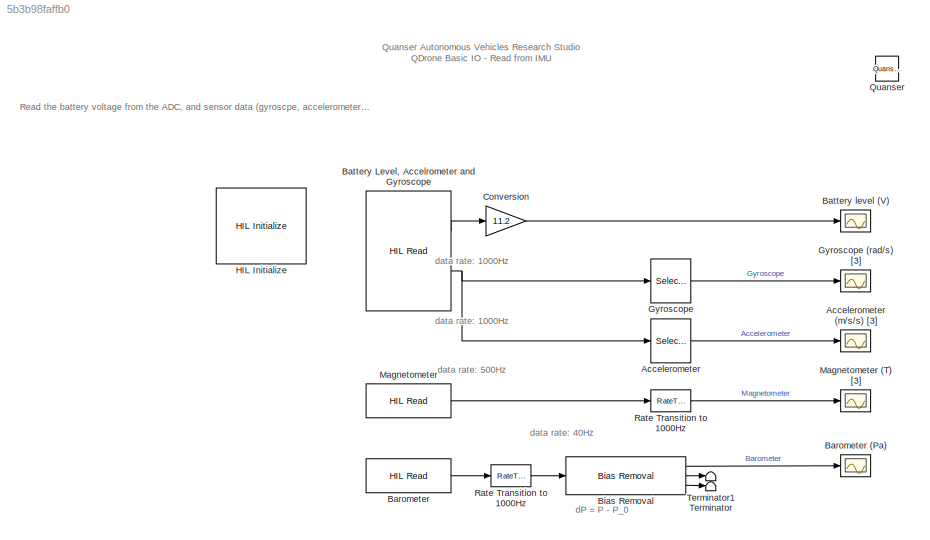
MODEL slx_5b3b98faffb0
KIND model
CONFIG AbsTol = auto
CONFIG EnableMultiTasking = on
CONFIG FixedStep = 0.001
CONFIG InitFcn = set_param(gcs, 'ZoomFactor','FitSystem')
CONFIG MaxStep = auto
CONFIG MinStep = auto
CONFIG RelTol = 1e-3
CONFIG SampleTimeConstraint = Unconstrained
CONFIG Solver = ode2
CONFIG SolverName = ode2
CONFIG StartTime = 0.0
CONFIG StopTime = inf
WORKSPACE source: MAT-file member
WORKSPACE target_system = 1
BLOCK [Selector] Accelerometer
  IndexOptions = Index vector (dialog)
  Indices = [4:6]
  InputPortWidth = 6
  OutputSizes = 1
  Ports = [1, 1]
BLOCK [Scope] Accelerometer (m//s//s) [3]
  Floating = off
  NumInputPorts = 1
  Ports = [1]
  ScopeSpecificationString = Simulink.scopes.TimeScopeBlockCfg('CurrentConfiguration', extmgr.ConfigurationSet(extmgr.Configuration('Core','General UI',true),extmgr.Configuration('Core','Source UI',true),extmgr.Configuration('Sources','WiredSimulink',true,'DataLoggingSaveFormat','Array','DataLoggingDecimation','1','DataLoggingDecimateData',true,'DataLoggingVariableName','ScopeData2'),extmgr.Configuration('Visuals','Time Domai...<+1670ch>
BLOCK [Reference] Barometer  REF=quarc_library/Data Acquisition/Generic/Immediate I//O/HIL Read
  AttributesFormatString = (%<object_name>)
  Ports = [0, 1]
  Priority = 1
  SourceBlock = quarc_library/Data Acquisition/Generic/Immediate I//O/HIL Read
  SourceProductName = The database <userpath>\AppData\Roaming\MathWorks\MATLAB\R2017a\slblocks_master.db is locked, or a table in the database is locked. (database is locked)
  SourceType = HIL Read
  UserDataPersistent = on
BLOCK [Scope] Barometer (Pa)
  Floating = off
  NumInputPorts = 1
  Ports = [1]
  ScopeSpecificationString = Simulink.scopes.TimeScopeBlockCfg('CurrentConfiguration', extmgr.ConfigurationSet(extmgr.Configuration('Core','General UI',true),extmgr.Configuration('Core','Source UI',true),extmgr.Configuration('Sources','WiredSimulink',true,'DataLoggingSaveFormat','Array','DataLoggingDecimation','1','DataLoggingDecimateData',true,'DataLoggingVariableName','ScopeData4'),extmgr.Configuration('Visuals','Time Domai...<+1686ch>
BLOCK [Reference] Battery Level, Accelrometer and Gyroscope  REF=quarc_library/Data Acquisition/Generic/Immediate I//O/HIL Read
  AttributesFormatString = (%<object_name>)
  Ports = [0, 2]
  Priority = 1
  SourceBlock = quarc_library/Data Acquisition/Generic/Immediate I//O/HIL Read
  SourceProductName = The database <userpath>\AppData\Roaming\MathWorks\MATLAB\R2017a\slblocks_master.db is locked, or a table in the database is locked. (database is locked)
  SourceType = HIL Read
  UserDataPersistent = on
BLOCK [Scope] Battery level  (V)
  Floating = off
  NumInputPorts = 1
  Ports = [1]
  ScopeSpecificationString = Simulink.scopes.TimeScopeBlockCfg('CurrentConfiguration', extmgr.ConfigurationSet(extmgr.Configuration('Core','General UI',true),extmgr.Configuration('Core','Source UI',true),extmgr.Configuration('Sources','WiredSimulink',true,'DataLoggingSaveFormat','Array','DataLoggingDecimation','1','DataLoggingDecimateData',true),extmgr.Configuration('Visuals','Time Domain',true,'SerializedDisplays',{struct('M...<+1609ch>
BLOCK [Reference] Bias Removal  REF=quarc_library/Discrete/Bias Removal
  Ports = [1, 3]
  SourceBlock = quarc_library/Discrete/Bias Removal
  SourceProductName = QUARC Targets
  SourceType = Bias Removal
BLOCK [Gain] Conversion
  Gain = 11.2
BLOCK [Selector] Gyroscope
  IndexOptions = Index vector (dialog)
  Indices = [1:3]
  InputPortWidth = 6
  OutputSizes = 1
  Ports = [1, 1]
BLOCK [Scope] Gyroscope (rad//s) [3]
  Floating = off
  NumInputPorts = 1
  Ports = [1]
  ScopeSpecificationString = Simulink.scopes.TimeScopeBlockCfg('CurrentConfiguration', extmgr.ConfigurationSet(extmgr.Configuration('Core','General UI',true),extmgr.Configuration('Core','Source UI',true),extmgr.Configuration('Sources','WiredSimulink',true,'DataLoggingSaveFormat','Array','DataLoggingDecimation','1','DataLoggingDecimateData',true,'DataLoggingVariableName','ScopeData1'),extmgr.Configuration('Visuals','Time Domai...<+1661ch>
BLOCK [Reference] HIL Initialize  REF=quarc_library/Data Acquisition/Generic/Configuration/HIL Initialize
  AttributesFormatString = %<object_name> (%<board_type>-%<board_number>)
  Ports = []
  SourceBlock = quarc_library/Data Acquisition/Generic/Configuration/HIL Initialize
  SourceProductName = The database <userpath>\AppData\Roaming\MathWorks\MATLAB\R2017a\slblocks_master.db is locked, or a table in the database is locked. (database is locked)
  SourceType = HIL Initialize
  UserDataPersistent = on
BLOCK [Reference] Magnetometer  REF=quarc_library/Data Acquisition/Generic/Immediate I//O/HIL Read
  AttributesFormatString = (%<object_name>)
  Ports = [0, 1]
  Priority = 1
  SourceBlock = quarc_library/Data Acquisition/Generic/Immediate I//O/HIL Read
  SourceProductName = The database <userpath>\AppData\Roaming\MathWorks\MATLAB\R2017a\slblocks_master.db is locked, or a table in the database is locked. (database is locked)
  SourceType = HIL Read
  UserDataPersistent = on
BLOCK [Scope] Magnetometer (T) [3]
  Floating = off
  NumInputPorts = 1
  Ports = [1]
  ScopeSpecificationString = Simulink.scopes.TimeScopeBlockCfg('CurrentConfiguration', extmgr.ConfigurationSet(extmgr.Configuration('Core','General UI',true),extmgr.Configuration('Core','Source UI',true),extmgr.Configuration('Sources','WiredSimulink',true,'DataLoggingSaveFormat','Array','DataLoggingDecimation','1','DataLoggingDecimateData',true,'DataLoggingVariableName','ScopeData3'),extmgr.Configuration('Visuals','Time Domai...<+1657ch>
BLOCK [Reference] Quanser  REF=quarc_library/Logos/Quanser
  Ports = []
  SourceBlock = quarc_library/Logos/Quanser
  SourceProductName = QUARC Targets
  SourceType = Powered by Quanser
BLOCK [RateTransition] Rate Transition to 1000Hz
  OutPortSampleTime = qc_get_step_size
BLOCK [Terminator] Terminator
BLOCK [Terminator] Terminator1
ANNOTATION (root): Quanser Autonomous Vehicles Research Studio QDrone Basic IO - Read from IMU
ANNOTATION (root): Read the battery voltage from the ADC, and sensor data (gyroscpe, accelerometer, magnetometer and barometer)
ANNOTATION (root): dP = P - P_0
ANNOTATION (root): data rate: 1000Hz
ANNOTATION (root): data rate: 40Hz
ANNOTATION (root): data rate: 500Hz
LINE Accelerometer:1 -> Accelerometer (m//s//s) [3]:1
LINE Barometer:1 -> Rate Transition to 1000Hz:1
LINE Battery Level, Accelrometer and Gyroscope:1 -> Conversion:1
NET Battery Level, Accelrometer and Gyroscope:2 -> Accelerometer:1, Gyroscope:1
LINE Bias Removal:1 -> Barometer (Pa):1
LINE Bias Removal:2 -> Terminator1:1
LINE Bias Removal:3 -> Terminator:1
LINE Conversion:1 -> Battery level  (V):1
LINE Gyroscope:1 -> Gyroscope (rad//s) [3]:1
LINE Magnetometer:1 -> Rate Transition to 1000Hz:1
NET Rate Transition to 1000Hz:1 -> Bias Removal:1, Magnetometer (T) [3]:1
note: NET lines group one-source signal fan-out (src -> all destinations, sorted); 1:1 wires keep LINE
